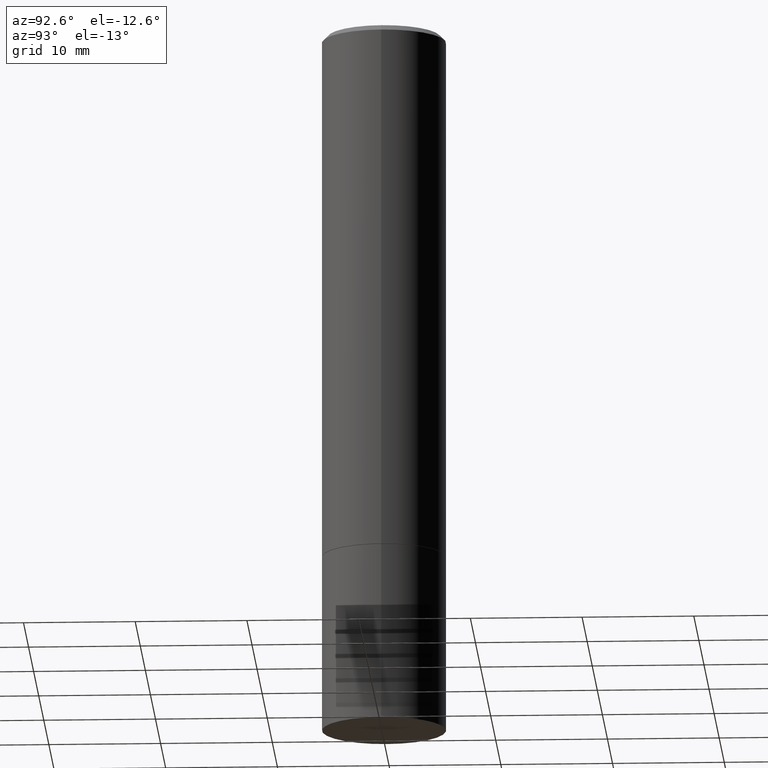
[diagram: clean part render]
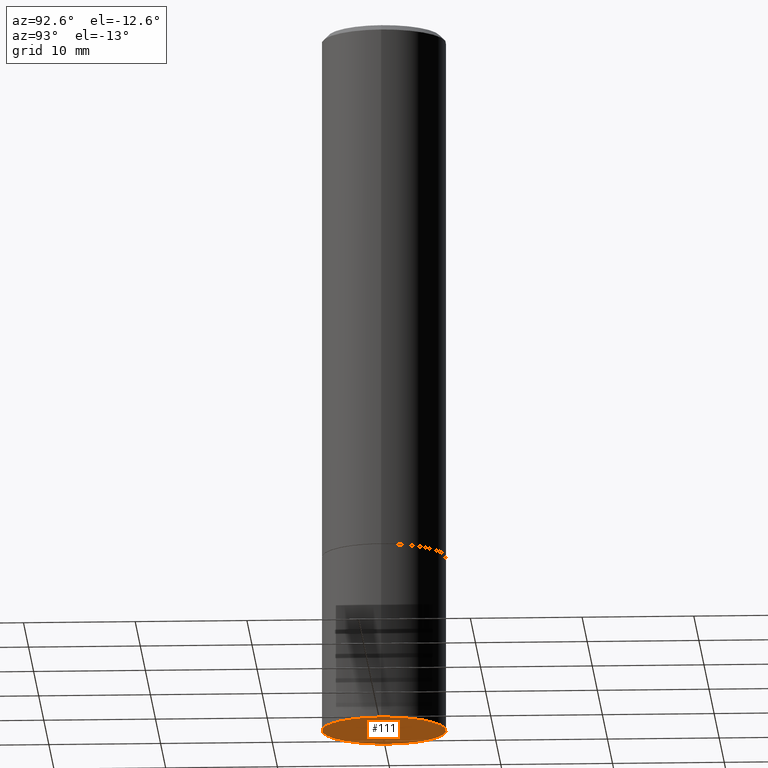
[diagram: same view with one face highlighted and labeled with its STEP entity id]
A machine part, auxiliary view. The second image highlights one B-rep face of the part: STEP entity #111.
In plain terms, the highlighted planar face has unit normal (0, -0, -1).
Its self-contained STEP definition (entity closure, byte-faithful):
#15 = CIRCLE ( 'NONE', #309, 0.2187500000000000000 ) ;
#33 = DIRECTION ( 'NONE',  ( 1.000000000000000000, -6.982962677686267499E-15, 0.000000000000000000 ) ) ;
#39 = CARTESIAN_POINT ( 'NONE',  ( 0.2187500000000000000, -1.025622643285173500E-14, -2.500000000000000000 ) ) ;
#41 = AXIS2_PLACEMENT_3D ( 'NONE', #82, #56, #33 ) ;
#56 = DIRECTION ( 'NONE',  ( -2.445468806185136597E-29, 3.491481338843145583E-15, 1.000000000000000000 ) ) ;
#70 = CIRCLE ( 'NONE', #41, 0.2187500000000000000 ) ;
#76 = EDGE_LOOP ( 'NONE', ( #267, #215 ) ) ;
#77 = DIRECTION ( 'NONE',  ( -1.000000000000000000, 6.982962677686265922E-15, -4.876176775795935793E-29 ) ) ;
#82 = CARTESIAN_POINT ( 'NONE',  ( 6.113672015462842613E-29, -8.728703347107864943E-15, -2.500000000000000000 ) ) ;
#111 = ADVANCED_FACE ( 'NONE', ( #192 ), #328, .T. ) ;
#151 = EDGE_CURVE ( 'NONE', #350, #320, #15, .T. ) ;
#189 = DIRECTION ( 'NONE',  ( 2.438088387897960049E-29, -3.491481338843145188E-15, -1.000000000000000000 ) ) ;
#192 = FACE_OUTER_BOUND ( 'NONE', #76, .T. ) ;
#194 = AXIS2_PLACEMENT_3D ( 'NONE', #217, #189, #77 ) ;
#200 = DIRECTION ( 'NONE',  ( -2.445468806185136597E-29, 3.491481338843145583E-15, 1.000000000000000000 ) ) ;
#208 = EDGE_CURVE ( 'NONE', #320, #350, #70, .T. ) ;
#215 = ORIENTED_EDGE ( 'NONE', *, *, #208, .F. ) ;
#217 = CARTESIAN_POINT ( 'NONE',  ( 1.527523085743931585E-15, 0.2187499999999912570, -2.500000000000000444 ) ) ;
#267 = ORIENTED_EDGE ( 'NONE', *, *, #151, .F. ) ;
#299 = CARTESIAN_POINT ( 'NONE',  ( 6.113672015462842613E-29, -8.728703347107864943E-15, -2.500000000000000000 ) ) ;
#307 = DIRECTION ( 'NONE',  ( 1.000000000000000000, -6.982962677686267499E-15, 0.000000000000000000 ) ) ;
#309 = AXIS2_PLACEMENT_3D ( 'NONE', #299, #200, #307 ) ;
#317 = CARTESIAN_POINT ( 'NONE',  ( -0.2187500000000000000, -6.083303194244162668E-15, -2.500000000000000000 ) ) ;
#320 = VERTEX_POINT ( 'NONE', #317 ) ;
#328 = PLANE ( 'NONE',  #194 ) ;
#350 = VERTEX_POINT ( 'NONE', #39 ) ;